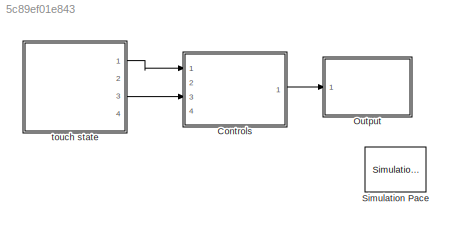
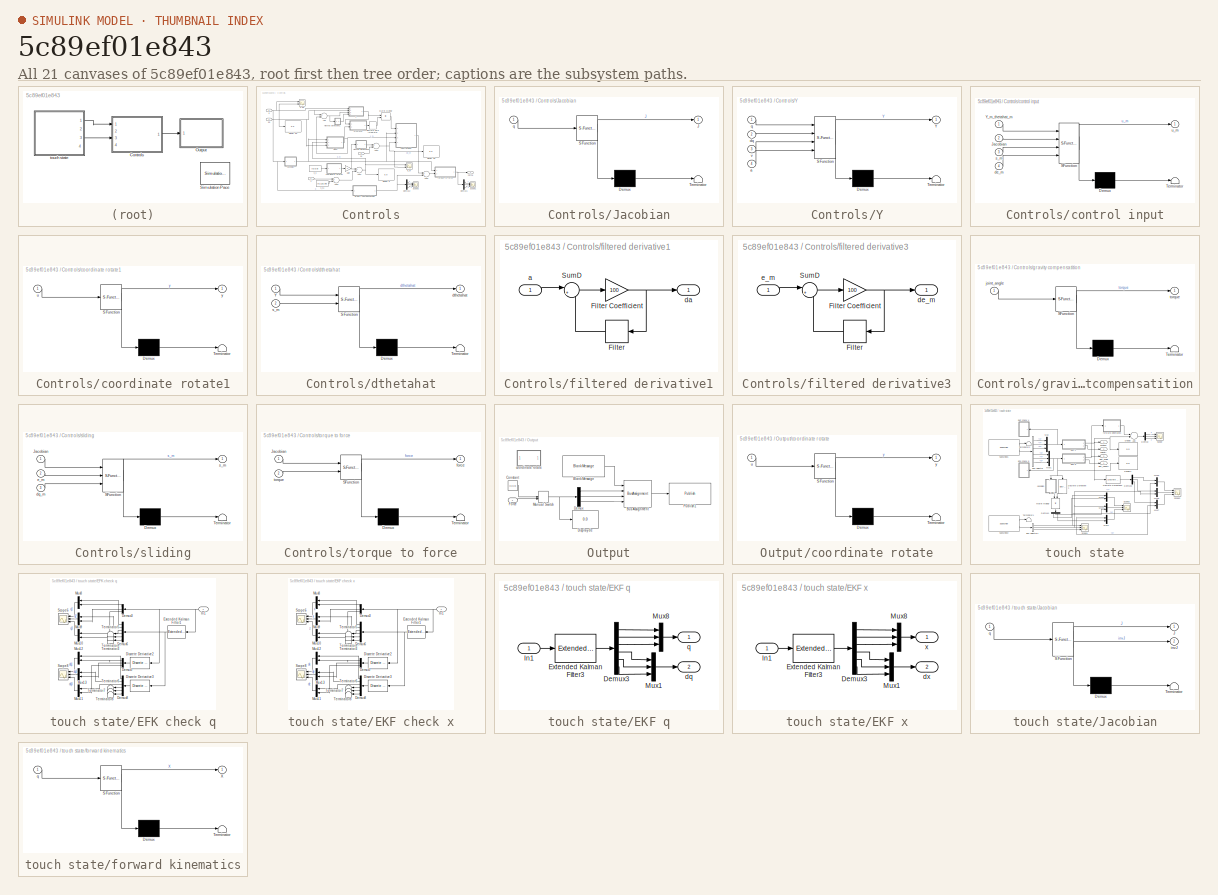
[diagram: thumbnail index - all 21 canvases of the model, root first then tree order]
MODEL slx_5c89ef01e843
KIND model
CONFIG AbsTol = auto
CONFIG EnableMultiTasking = on
CONFIG FixedStep = 0.01
CONFIG MaxStep = auto
CONFIG MinStep = auto
CONFIG RelTol = 1e-3
CONFIG SampleTimeConstraint = Unconstrained
CONFIG Solver = FixedStepDiscrete
CONFIG SolverName = FixedStepDiscrete
CONFIG StartTime = 0.0
CONFIG StopTime = Inf
WORKSPACE source: MAT-file member
WORKSPACE SL_ROS_VariableLengthArrays_MaxSizes: struct (value not decoded)
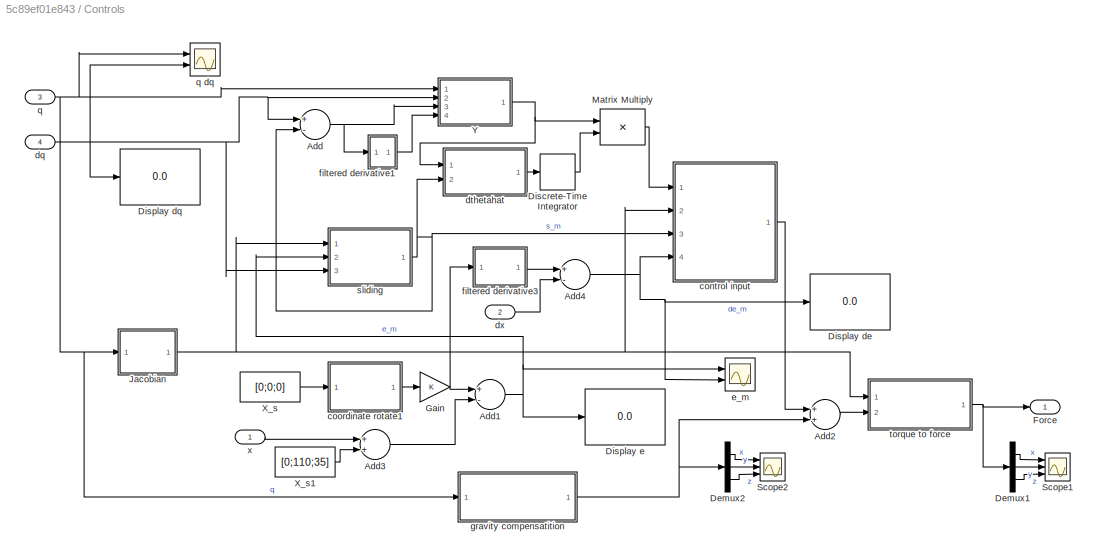
BLOCK [SubSystem] Controls
  Ports = [4, 1]
  RequestExecContextInheritance = off
BLOCK [Sum] Controls/Add
  InputSameDT = off
  Inputs = +-
  OutDataTypeStr = Inherit: Inherit via internal rule
  Ports = [2, 1]
  SaturateOnIntegerOverflow = off
BLOCK [Sum] Controls/Add1
  InputSameDT = off
  Inputs = +-
  OutDataTypeStr = Inherit: Inherit via internal rule
  Ports = [2, 1]
  SaturateOnIntegerOverflow = off
BLOCK [Sum] Controls/Add2
  InputSameDT = off
  OutDataTypeStr = Inherit: Inherit via internal rule
  Ports = [2, 1]
  SaturateOnIntegerOverflow = off
BLOCK [Sum] Controls/Add3
  InputSameDT = off
  OutDataTypeStr = Inherit: Inherit via internal rule
  Ports = [2, 1]
  SaturateOnIntegerOverflow = off
BLOCK [Sum] Controls/Add4
  InputSameDT = off
  Inputs = +-
  OutDataTypeStr = Inherit: Inherit via internal rule
  Ports = [2, 1]
  SaturateOnIntegerOverflow = off
BLOCK [Demux] Controls/Demux1
  DisplayOption = bar
  Outputs = 3
  Ports = [1, 3]
BLOCK [Demux] Controls/Demux2
  DisplayOption = bar
  Outputs = 3
  Ports = [1, 3]
BLOCK [DiscreteIntegrator] Controls/Discrete-Time Integrator
  ICPrevOutput = DiscIntNeverNeededParam
  ICPrevScaledInput = DiscIntNeverNeededParam
  InitialConditionSetting = Auto
  Ports = [1, 1]
  SampleTime = -1
BLOCK [Display] Controls/Display de
  Ports = [1]
BLOCK [Display] Controls/Display dq
  Ports = [1]
BLOCK [Display] Controls/Display e
  Ports = [1]
BLOCK [Outport] Controls/Force
  IconDisplay = Port number
BLOCK [Gain] Controls/Gain
  OutDataTypeStr = Inherit: Inherit via internal rule
  ParamDataTypeStr = Inherit: Inherit via internal rule
  SaturateOnIntegerOverflow = off
BLOCK [SubSystem] Controls/Jacobian
  ErrorFcn = Stateflow.Translate.translate
  PermitHierarchicalResolution = ExplicitOnly
  Ports = [1, 1]
  RequestExecContextInheritance = off
  SFBlockType = MATLAB Function
  TreatAsAtomicUnit = on
BLOCK [Demux] Controls/Jacobian/ Demux 
  Outputs = 1
  Ports = [1, 1]
BLOCK [S-Function] Controls/Jacobian/ SFunction 
  EnableBusSupport = on
  FunctionName = sf_sfun
  PortCounts = [1 2]
  Ports = [1, 2]
  SFcnIsStateOwnerBlock = off
  SFunctionDeploymentMode = off
  Tag = Stateflow S-Function distributed_swarm_controller 17
BLOCK [Terminator] Controls/Jacobian/ Terminator 
BLOCK [Outport] Controls/Jacobian/J
  IconDisplay = Port number
BLOCK [Inport] Controls/Jacobian/q
  IconDisplay = Port number
BLOCK [Product] Controls/Matrix Multiply
  InputSameDT = off
  Multiplication = Matrix(*)
  OutDataTypeStr = Inherit: Inherit via internal rule
  Ports = [2, 1]
  RndMeth = Floor
  SaturateOnIntegerOverflow = off
BLOCK [Scope] Controls/Scope1
  Floating = off
  NumInputPorts = 3
  Ports = [3]
  ScopeSpecificationString = Simulink.scopes.TimeScopeBlockCfg('CurrentConfiguration', extmgr.ConfigurationSet(extmgr.Configuration('Core','General UI',true),extmgr.Configuration('Core','Source UI',true),extmgr.Configuration('Sources','WiredSimulink',true,'DataLoggingVariableName','ScopeData4'),extmgr.Configuration('Visuals','Time Domain',true,'SerializedDisplays',{struct('MinYLimReal','-3.12609','MaxYLimReal','3.88345','YLab...<+2756ch>
BLOCK [Scope] Controls/Scope2
  Floating = off
  NumInputPorts = 3
  Ports = [3]
  ScopeSpecificationString = Simulink.scopes.TimeScopeBlockCfg('CurrentConfiguration', extmgr.ConfigurationSet(extmgr.Configuration('Core','General UI',true),extmgr.Configuration('Core','Source UI',true),extmgr.Configuration('Sources','WiredSimulink',true,'DataLoggingVariableName','ScopeData5'),extmgr.Configuration('Visuals','Time Domain',true,'SerializedDisplays',{struct('MinYLimReal','-1.00000','MaxYLimReal','1.00000','YLab...<+2758ch>
BLOCK [Constant] Controls/X_s
  Value = [0;0;0]
BLOCK [Constant] Controls/X_s1
  Value = [0;110;35]
BLOCK [SubSystem] Controls/Y
  ErrorFcn = Stateflow.Translate.translate
  PermitHierarchicalResolution = ExplicitOnly
  Ports = [4, 1]
  RequestExecContextInheritance = off
  SFBlockType = MATLAB Function
  TreatAsAtomicUnit = on
BLOCK [Demux] Controls/Y/ Demux 
  Outputs = 1
  Ports = [1, 1]
BLOCK [S-Function] Controls/Y/ SFunction 
  EnableBusSupport = on
  FunctionName = sf_sfun
  PortCounts = [4 2]
  Ports = [4, 2]
  SFcnIsStateOwnerBlock = off
  SFunctionDeploymentMode = off
  Tag = Stateflow S-Function distributed_swarm_controller 9
BLOCK [Terminator] Controls/Y/ Terminator 
BLOCK [Outport] Controls/Y/Y
  IconDisplay = Port number
BLOCK [Inport] Controls/Y/a
  IconDisplay = Port number
  Port = 4
BLOCK [Inport] Controls/Y/dq
  IconDisplay = Port number
  Port = 2
BLOCK [Inport] Controls/Y/q
  IconDisplay = Port number
BLOCK [Inport] Controls/Y/v
  IconDisplay = Port number
  Port = 3
BLOCK [SubSystem] Controls/control input
  ErrorFcn = Stateflow.Translate.translate
  PermitHierarchicalResolution = ExplicitOnly
  Ports = [4, 1]
  RequestExecContextInheritance = off
  SFBlockType = MATLAB Function
  TreatAsAtomicUnit = on
BLOCK [Demux] Controls/control input/ Demux 
  Outputs = 1
  Ports = [1, 1]
BLOCK [S-Function] Controls/control input/ SFunction 
  EnableBusSupport = on
  FunctionName = sf_sfun
  PortCounts = [4 2]
  Ports = [4, 2]
  SFcnIsStateOwnerBlock = off
  SFunctionDeploymentMode = off
  Tag = Stateflow S-Function distributed_swarm_controller 7
BLOCK [Terminator] Controls/control input/ Terminator 
BLOCK [Inport] Controls/control input/Jacobian
  IconDisplay = Port number
  Port = 2
BLOCK [Inport] Controls/control input/Y_m_thetahat_m
  IconDisplay = Port number
BLOCK [Inport] Controls/control input/de_m
  IconDisplay = Port number
  Port = 4
BLOCK [Inport] Controls/control input/s_m
  IconDisplay = Port number
  Port = 3
BLOCK [Outport] Controls/control input/u_m
  IconDisplay = Port number
BLOCK [SubSystem] Controls/coordinate rotate1
  ErrorFcn = Stateflow.Translate.translate
  PermitHierarchicalResolution = ExplicitOnly
  Ports = [1, 1]
  RequestExecContextInheritance = off
  SFBlockType = MATLAB Function
  TreatAsAtomicUnit = on
BLOCK [Demux] Controls/coordinate rotate1/ Demux 
  Outputs = 1
  Ports = [1, 1]
BLOCK [S-Function] Controls/coordinate rotate1/ SFunction 
  EnableBusSupport = on
  FunctionName = sf_sfun
  PortCounts = [1 2]
  Ports = [1, 2]
  SFcnIsStateOwnerBlock = off
  SFunctionDeploymentMode = off
  Tag = Stateflow S-Function distributed_swarm_controller 11
BLOCK [Terminator] Controls/coordinate rotate1/ Terminator 
BLOCK [Inport] Controls/coordinate rotate1/u
  IconDisplay = Port number
BLOCK [Outport] Controls/coordinate rotate1/y
  IconDisplay = Port number
BLOCK [Inport] Controls/dq
  IconDisplay = Port number
  Port = 4
BLOCK [SubSystem] Controls/dthetahat
  ErrorFcn = Stateflow.Translate.translate
  PermitHierarchicalResolution = ExplicitOnly
  Ports = [2, 1]
  RequestExecContextInheritance = off
  SFBlockType = MATLAB Function
  TreatAsAtomicUnit = on
BLOCK [Demux] Controls/dthetahat/ Demux 
  Outputs = 1
  Ports = [1, 1]
BLOCK [S-Function] Controls/dthetahat/ SFunction 
  EnableBusSupport = on
  FunctionName = sf_sfun
  PortCounts = [2 2]
  Ports = [2, 2]
  SFcnIsStateOwnerBlock = off
  SFunctionDeploymentMode = off
  Tag = Stateflow S-Function distributed_swarm_controller 10
BLOCK [Terminator] Controls/dthetahat/ Terminator 
BLOCK [Inport] Controls/dthetahat/Y
  IconDisplay = Port number
BLOCK [Outport] Controls/dthetahat/dthetahat
  IconDisplay = Port number
BLOCK [Inport] Controls/dthetahat/s_m
  IconDisplay = Port number
  Port = 2
BLOCK [Inport] Controls/dx
  IconDisplay = Port number
  Port = 2
BLOCK [Scope] Controls/e_m
  Floating = off
  NumInputPorts = 2
  Ports = [2]
  ScopeSpecificationString = Simulink.scopes.TimeScopeBlockCfg('CurrentConfiguration', extmgr.ConfigurationSet(extmgr.Configuration('Core','General UI',true),extmgr.Configuration('Core','Source UI',true),extmgr.Configuration('Sources','WiredSimulink',true,'DataLoggingVariableName','ScopeData2'),extmgr.Configuration('Visuals','Time Domain',true,'SerializedDisplays',{struct('MinYLimReal','-112.44065','MaxYLimReal','134.71979','...<+2151ch>
BLOCK [SubSystem] Controls/filtered derivative1
  Ports = [1, 1]
  RequestExecContextInheritance = off
BLOCK [DiscreteIntegrator] Controls/filtered derivative1/Filter
  DisableCoverage = on
  ICPrevOutput = DiscIntNeverNeededParam
  ICPrevScaledInput = DiscIntNeverNeededParam
  InitialConditionSetting = Auto
  Ports = [1, 1]
  SampleTime = -1
BLOCK [Gain] Controls/filtered derivative1/Filter Coefficient
  Gain = 100
  OutDataTypeStr = Inherit: Inherit via internal rule
  ParamDataTypeStr = Inherit: Inherit via internal rule
  SaturateOnIntegerOverflow = off
BLOCK [Sum] Controls/filtered derivative1/SumD
  DisableCoverage = on
  IconShape = round
  InputSameDT = off
  Inputs = |+-
  OutDataTypeStr = Inherit: Inherit via internal rule
  Ports = [2, 1]
  SaturateOnIntegerOverflow = off
BLOCK [Inport] Controls/filtered derivative1/a
  IconDisplay = Port number
BLOCK [Outport] Controls/filtered derivative1/da
  IconDisplay = Port number
BLOCK [SubSystem] Controls/filtered derivative3
  Ports = [1, 1]
  RequestExecContextInheritance = off
BLOCK [DiscreteIntegrator] Controls/filtered derivative3/Filter
  DisableCoverage = on
  ICPrevOutput = DiscIntNeverNeededParam
  ICPrevScaledInput = DiscIntNeverNeededParam
  InitialConditionSetting = Auto
  Ports = [1, 1]
  SampleTime = -1
BLOCK [Gain] Controls/filtered derivative3/Filter Coefficient
  Gain = 100
  OutDataTypeStr = Inherit: Inherit via internal rule
  ParamDataTypeStr = Inherit: Inherit via internal rule
  SaturateOnIntegerOverflow = off
BLOCK [Sum] Controls/filtered derivative3/SumD
  DisableCoverage = on
  IconShape = round
  InputSameDT = off
  Inputs = |+-
  OutDataTypeStr = Inherit: Inherit via internal rule
  Ports = [2, 1]
  SaturateOnIntegerOverflow = off
BLOCK [Outport] Controls/filtered derivative3/de_m
  IconDisplay = Port number
BLOCK [Inport] Controls/filtered derivative3/e_m
  IconDisplay = Port number
BLOCK [SubSystem] Controls/gravity compensatition
  ErrorFcn = Stateflow.Translate.translate
  PermitHierarchicalResolution = ExplicitOnly
  Ports = [1, 1]
  RequestExecContextInheritance = off
  SFBlockType = MATLAB Function
  TreatAsAtomicUnit = on
BLOCK [Demux] Controls/gravity compensatition/ Demux 
  Outputs = 1
  Ports = [1, 1]
BLOCK [S-Function] Controls/gravity compensatition/ SFunction 
  EnableBusSupport = on
  FunctionName = sf_sfun
  PortCounts = [1 2]
  Ports = [1, 2]
  SFcnIsStateOwnerBlock = off
  SFunctionDeploymentMode = off
  Tag = Stateflow S-Function distributed_swarm_controller 2
BLOCK [Terminator] Controls/gravity compensatition/ Terminator 
BLOCK [Inport] Controls/gravity compensatition/joint_angle
  IconDisplay = Port number
BLOCK [Outport] Controls/gravity compensatition/torque
  IconDisplay = Port number
BLOCK [Inport] Controls/q
  IconDisplay = Port number
  Port = 3
BLOCK [Scope] Controls/q dq
  Floating = off
  NumInputPorts = 2
  Ports = [2]
  ScopeSpecificationString = Simulink.scopes.TimeScopeBlockCfg('CurrentConfiguration', extmgr.ConfigurationSet(extmgr.Configuration('Core','General UI',true),extmgr.Configuration('Core','Source UI',true),extmgr.Configuration('Sources','WiredSimulink',true,'DataLoggingVariableName','ScopeData1'),extmgr.Configuration('Visuals','Time Domain',true,'SerializedDisplays',{struct('MinYLimReal','-1.07354','MaxYLimReal','1.23818','YLab...<+2120ch>
BLOCK [SubSystem] Controls/sliding
  ErrorFcn = Stateflow.Translate.translate
  PermitHierarchicalResolution = ExplicitOnly
  Ports = [3, 1]
  RequestExecContextInheritance = off
  SFBlockType = MATLAB Function
  TreatAsAtomicUnit = on
BLOCK [Demux] Controls/sliding/ Demux 
  Outputs = 1
  Ports = [1, 1]
BLOCK [S-Function] Controls/sliding/ SFunction 
  EnableBusSupport = on
  FunctionName = sf_sfun
  PortCounts = [3 2]
  Ports = [3, 2]
  SFcnIsStateOwnerBlock = off
  SFunctionDeploymentMode = off
  Tag = Stateflow S-Function distributed_swarm_controller 8
BLOCK [Terminator] Controls/sliding/ Terminator 
BLOCK [Inport] Controls/sliding/Jacobian
  IconDisplay = Port number
BLOCK [Inport] Controls/sliding/dq_m
  IconDisplay = Port number
  Port = 3
BLOCK [Inport] Controls/sliding/e_m
  IconDisplay = Port number
  Port = 2
BLOCK [Outport] Controls/sliding/s_m
  IconDisplay = Port number
BLOCK [SubSystem] Controls/torque to force
  ErrorFcn = Stateflow.Translate.translate
  PermitHierarchicalResolution = ExplicitOnly
  Ports = [2, 1]
  RequestExecContextInheritance = off
  SFBlockType = MATLAB Function
  TreatAsAtomicUnit = on
BLOCK [Demux] Controls/torque to force/ Demux 
  Outputs = 1
  Ports = [1, 1]
BLOCK [S-Function] Controls/torque to force/ SFunction 
  EnableBusSupport = on
  FunctionName = sf_sfun
  PortCounts = [2 2]
  Ports = [2, 2]
  SFcnIsStateOwnerBlock = off
  SFunctionDeploymentMode = off
  Tag = Stateflow S-Function distributed_swarm_controller 1
BLOCK [Terminator] Controls/torque to force/ Terminator 
BLOCK [Inport] Controls/torque to force/Jacobian
  IconDisplay = Port number
BLOCK [Outport] Controls/torque to force/force
  IconDisplay = Port number
BLOCK [Inport] Controls/torque to force/torque
  IconDisplay = Port number
  Port = 2
BLOCK [Inport] Controls/x
  IconDisplay = Port number
BLOCK [SubSystem] Output
  Ports = [1]
  RequestExecContextInheritance = off
BLOCK [Reference] Output/Blank Message  REF=robotlib/Blank Message
  Ports = [0, 1]
  SourceBlock = robotlib/Blank Message
  SourceLibraryInfo = This block requires Robotics System Toolbox
  SourceProductBaseCode = RO
  SourceProductName = Robotics System Toolbox
  SourceType = ROS Blank Message
BLOCK [BusAssignment] Output/Bus Assignment
  AssignedSignals = Vector_.X,Vector_.Y,Vector_.Z
  DialogController = Simulink.DDGSource_BusAssignment
  Ports = [4, 1]
BLOCK [Constant] Output/Constant
  Value = [0;0;0]
BLOCK [Demux] Output/Demux
  DisplayOption = bar
  Outputs = 3
  Ports = [1, 3]
BLOCK [Display] Output/Display de
  Ports = [1]
BLOCK [Inport] Output/Force
  IconDisplay = Port number
BLOCK [ManualSwitch] Output/Manual Switch
BLOCK [Reference] Output/Publish1  REF=robotlib/Publish
  Ports = [1]
  SourceBlock = robotlib/Publish
  SourceLibraryInfo = This block requires Robotics System Toolbox
  SourceProductBaseCode = RO
  SourceProductName = Robotics System Toolbox
  SourceType = ROS Publish
BLOCK [SubSystem] Output/coordinate rotate
  Commented = through
  ErrorFcn = Stateflow.Translate.translate
  PermitHierarchicalResolution = ExplicitOnly
  Ports = [1, 1]
  RequestExecContextInheritance = off
  SFBlockType = MATLAB Function
  TreatAsAtomicUnit = on
BLOCK [Demux] Output/coordinate rotate/ Demux 
  Outputs = 1
  Ports = [1, 1]
BLOCK [S-Function] Output/coordinate rotate/ SFunction 
  EnableBusSupport = on
  FunctionName = sf_sfun
  PortCounts = [1 2]
  Ports = [1, 2]
  SFcnIsStateOwnerBlock = off
  SFunctionDeploymentMode = off
  Tag = Stateflow S-Function distributed_swarm_controller 5
BLOCK [Terminator] Output/coordinate rotate/ Terminator 
BLOCK [Inport] Output/coordinate rotate/u
  IconDisplay = Port number
BLOCK [Outport] Output/coordinate rotate/y
  IconDisplay = Port number
BLOCK [Reference] Simulation Pace  REF=aerolibanimutils/Simulation Pace
  AttributesFormatString = %<SleepMode>\n%<SimulationPace> sec/sec
  Ports = []
  SourceBlock = aerolibanimutils/Simulation Pace
  SourceProductBaseCode = AE
  SourceProductName = Aerospace Blockset
  SourceType = Simulation Pace
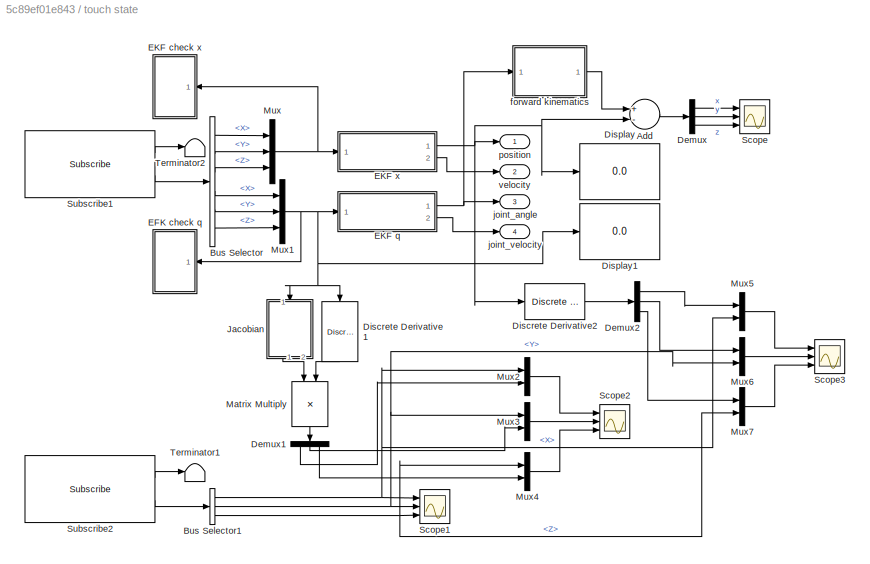
BLOCK [SubSystem] touch state
  Ports = [0, 4]
  RequestExecContextInheritance = off
BLOCK [Sum] touch state/Add
  InputSameDT = off
  Inputs = +-
  OutDataTypeStr = Inherit: Inherit via internal rule
  Ports = [2, 1]
  SaturateOnIntegerOverflow = off
BLOCK [BusSelector] touch state/Bus Selector
  DialogController = Simulink.DDGSource_BusSelector
  OutputAsBus = off
  OutputSignals = Twist.Linear.X,Twist.Linear.Y,Twist.Linear.Z,Twist.Angular.X,Twist.Angular.Y,Twist.Angular.Z
  Ports = [1, 6]
BLOCK [BusSelector] touch state/Bus Selector1
  DialogController = Simulink.DDGSource_BusSelector
  OutputAsBus = off
  OutputSignals = Vector_.X,Vector_.Y,Vector_.Z
  Ports = [1, 3]
BLOCK [Demux] touch state/Demux
  DisplayOption = bar
  Outputs = 3
  Ports = [1, 3]
BLOCK [Demux] touch state/Demux1
  DisplayOption = bar
  Outputs = 3
  Ports = [1, 3]
BLOCK [Demux] touch state/Demux2
  DisplayOption = bar
  Outputs = 3
  Ports = [1, 3]
BLOCK [Reference] touch state/Discrete Derivative1  REF=simulink/Discrete/Discrete Derivative
  Ports = [1, 1]
  SourceBlock = simulink/Discrete/Discrete Derivative
  SourceProductBaseCode = SL
  SourceProductName = Simulink
  SourceType = Discrete Derivative
BLOCK [Reference] touch state/Discrete Derivative2  REF=simulink/Discrete/Discrete Derivative
  Ports = [1, 1]
  SourceBlock = simulink/Discrete/Discrete Derivative
  SourceProductBaseCode = SL
  SourceProductName = Simulink
  SourceType = Discrete Derivative
BLOCK [Display] touch state/Display
  Ports = [1]
BLOCK [Display] touch state/Display1
  Ports = [1]
BLOCK [SubSystem] touch state/EFK check q
  Ports = [1]
  RequestExecContextInheritance = off
BLOCK [Demux] touch state/EFK check q/Demux3
  DisplayOption = bar
  Outputs = 3
  Ports = [1, 3]
BLOCK [Demux] touch state/EFK check q/Demux6
  DisplayOption = bar
  Outputs = 6
  Ports = [1, 6]
BLOCK [Demux] touch state/EFK check q/Demux7
  DisplayOption = bar
  Outputs = 3
  Ports = [1, 3]
BLOCK [Demux] touch state/EFK check q/Demux8
  DisplayOption = bar
  Outputs = 6
  Ports = [1, 6]
BLOCK [Reference] touch state/EFK check q/Discrete Derivative2  REF=simulink/Discrete/Discrete Derivative
  Ports = [1, 1]
  SourceBlock = simulink/Discrete/Discrete Derivative
  SourceProductBaseCode = SL
  SourceProductName = Simulink
  SourceType = Discrete Derivative
BLOCK [Reference] touch state/EFK check q/Discrete Derivative3  REF=simulink/Discrete/Discrete Derivative
  Ports = [1, 1]
  SourceBlock = simulink/Discrete/Discrete Derivative
  SourceProductBaseCode = SL
  SourceProductName = Simulink
  SourceType = Discrete Derivative
BLOCK [Reference] touch state/EFK check q/Extended Kalman Filter1  REF=sharedTrackingLibrary/Extended Kalman Filter
  Ports = [1, 1]
  SourceBlock = sharedTrackingLibrary/Extended Kalman Filter
  SourceProductBaseCode = CT
  SourceProductName = Control System Toolbox
  SourceType = Extended Kalman Filter
BLOCK [Inport] touch state/EFK check q/In1
  IconDisplay = Port number
BLOCK [Mux] touch state/EFK check q/Mux10
  DisplayOption = bar
  Inputs = 2
  Ports = [2, 1]
BLOCK [Mux] touch state/EFK check q/Mux11
  DisplayOption = bar
  Inputs = 2
  Ports = [2, 1]
BLOCK [Mux] touch state/EFK check q/Mux12
  DisplayOption = bar
  Inputs = 2
  Ports = [2, 1]
BLOCK [Mux] touch state/EFK check q/Mux13
  DisplayOption = bar
  Inputs = 2
  Ports = [2, 1]
BLOCK [Mux] touch state/EFK check q/Mux8
  DisplayOption = bar
  Inputs = 2
  Ports = [2, 1]
BLOCK [Mux] touch state/EFK check q/Mux9
  DisplayOption = bar
  Inputs = 2
  Ports = [2, 1]
BLOCK [Scope] touch state/EFK check q/Scope6
  Floating = off
  NumInputPorts = 3
  Ports = [3]
  ScopeSpecificationString = Simulink.scopes.TimeScopeBlockCfg('CurrentConfiguration', extmgr.ConfigurationSet(extmgr.Configuration('Core','General UI',true),extmgr.Configuration('Core','Source UI',true),extmgr.Configuration('Sources','WiredSimulink',true,'DataLoggingVariableName','ScopeData4'),extmgr.Configuration('Visuals','Time Domain',true,'SerializedDisplays',{struct('MinYLimReal','-1.15378','MaxYLimReal','0.86843','YLab...<+2763ch>
BLOCK [Scope] touch state/EFK check q/Scope8
  Floating = off
  NumInputPorts = 3
  Ports = [3]
  ScopeSpecificationString = Simulink.scopes.TimeScopeBlockCfg('CurrentConfiguration', extmgr.ConfigurationSet(extmgr.Configuration('Core','General UI',true),extmgr.Configuration('Core','Source UI',true),extmgr.Configuration('Sources','WiredSimulink',true,'DataLoggingVariableName','ScopeData6'),extmgr.Configuration('Visuals','Time Domain',true,'SerializedDisplays',{struct('MinYLimReal','-10.07438','MaxYLimReal','17.47595','YL...<+2774ch>
BLOCK [Terminator] touch state/EFK check q/Terminator3
BLOCK [Terminator] touch state/EFK check q/Terminator4
BLOCK [Terminator] touch state/EFK check q/Terminator5
BLOCK [Terminator] touch state/EFK check q/Terminator6
BLOCK [Terminator] touch state/EFK check q/Terminator7
BLOCK [Terminator] touch state/EFK check q/Terminator8
BLOCK [SubSystem] touch state/EKF check x
  Ports = [1]
  RequestExecContextInheritance = off
BLOCK [Demux] touch state/EKF check x/Demux3
  DisplayOption = bar
  Outputs = 3
  Ports = [1, 3]
BLOCK [Demux] touch state/EKF check x/Demux6
  DisplayOption = bar
  Outputs = 6
  Ports = [1, 6]
BLOCK [Demux] touch state/EKF check x/Demux7
  DisplayOption = bar
  Outputs = 3
  Ports = [1, 3]
BLOCK [Demux] touch state/EKF check x/Demux8
  DisplayOption = bar
  Outputs = 6
  Ports = [1, 6]
BLOCK [Reference] touch state/EKF check x/Discrete Derivative2  REF=simulink/Discrete/Discrete Derivative
  Ports = [1, 1]
  SourceBlock = simulink/Discrete/Discrete Derivative
  SourceProductBaseCode = SL
  SourceProductName = Simulink
  SourceType = Discrete Derivative
BLOCK [Reference] touch state/EKF check x/Discrete Derivative3  REF=simulink/Discrete/Discrete Derivative
  Ports = [1, 1]
  SourceBlock = simulink/Discrete/Discrete Derivative
  SourceProductBaseCode = SL
  SourceProductName = Simulink
  SourceType = Discrete Derivative
BLOCK [Reference] touch state/EKF check x/Extended Kalman Filter1  REF=sharedTrackingLibrary/Extended Kalman Filter
  Ports = [1, 1]
  SourceBlock = sharedTrackingLibrary/Extended Kalman Filter
  SourceProductBaseCode = CT
  SourceProductName = Control System Toolbox
  SourceType = Extended Kalman Filter
BLOCK [Inport] touch state/EKF check x/In1
  IconDisplay = Port number
BLOCK [Mux] touch state/EKF check x/Mux10
  DisplayOption = bar
  Inputs = 2
  Ports = [2, 1]
BLOCK [Mux] touch state/EKF check x/Mux11
  DisplayOption = bar
  Inputs = 2
  Ports = [2, 1]
BLOCK [Mux] touch state/EKF check x/Mux12
  DisplayOption = bar
  Inputs = 2
  Ports = [2, 1]
BLOCK [Mux] touch state/EKF check x/Mux13
  DisplayOption = bar
  Inputs = 2
  Ports = [2, 1]
BLOCK [Mux] touch state/EKF check x/Mux8
  DisplayOption = bar
  Inputs = 2
  Ports = [2, 1]
BLOCK [Mux] touch state/EKF check x/Mux9
  DisplayOption = bar
  Inputs = 2
  Ports = [2, 1]
BLOCK [Scope] touch state/EKF check x/Scope6
  Floating = off
  NumInputPorts = 3
  Ports = [3]
  ScopeSpecificationString = Simulink.scopes.TimeScopeBlockCfg('CurrentConfiguration', extmgr.ConfigurationSet(extmgr.Configuration('Core','General UI',true),extmgr.Configuration('Core','Source UI',true),extmgr.Configuration('Sources','WiredSimulink',true,'DataLoggingVariableName','ScopeData4'),extmgr.Configuration('Visuals','Time Domain',true,'SerializedDisplays',{struct('MinYLimReal','-141.74114','MaxYLimReal','130.83105','...<+2769ch>
BLOCK [Scope] touch state/EKF check x/Scope8
  Floating = off
  NumInputPorts = 3
  Ports = [3]
  ScopeSpecificationString = Simulink.scopes.TimeScopeBlockCfg('CurrentConfiguration', extmgr.ConfigurationSet(extmgr.Configuration('Core','General UI',true),extmgr.Configuration('Core','Source UI',true),extmgr.Configuration('Sources','WiredSimulink',true,'DataLoggingVariableName','ScopeData6'),extmgr.Configuration('Visuals','Time Domain',true,'SerializedDisplays',{struct('MinYLimReal','-5139.14709','MaxYLimReal','6081.94227'...<+2784ch>
BLOCK [Terminator] touch state/EKF check x/Terminator3
BLOCK [Terminator] touch state/EKF check x/Terminator4
BLOCK [Terminator] touch state/EKF check x/Terminator5
BLOCK [Terminator] touch state/EKF check x/Terminator6
BLOCK [Terminator] touch state/EKF check x/Terminator7
BLOCK [Terminator] touch state/EKF check x/Terminator8
BLOCK [SubSystem] touch state/EKF q
  Ports = [1, 2]
  RequestExecContextInheritance = off
BLOCK [Demux] touch state/EKF q/Demux3
  DisplayOption = bar
  Outputs = 6
  Ports = [1, 6]
BLOCK [Reference] touch state/EKF q/Extended Kalman Filter3  REF=sharedTrackingLibrary/Extended Kalman Filter
  Ports = [1, 1]
  SourceBlock = sharedTrackingLibrary/Extended Kalman Filter
  SourceProductBaseCode = CT
  SourceProductName = Control System Toolbox
  SourceType = Extended Kalman Filter
BLOCK [Inport] touch state/EKF q/In1
  IconDisplay = Port number
BLOCK [Mux] touch state/EKF q/Mux1
  DisplayOption = bar
  Inputs = 3
  Ports = [3, 1]
BLOCK [Mux] touch state/EKF q/Mux8
  DisplayOption = bar
  Inputs = 3
  Ports = [3, 1]
BLOCK [Outport] touch state/EKF q/dq
  IconDisplay = Port number
  Port = 2
BLOCK [Outport] touch state/EKF q/q
  IconDisplay = Port number
BLOCK [SubSystem] touch state/EKF x
  Ports = [1, 2]
  RequestExecContextInheritance = off
BLOCK [Demux] touch state/EKF x/Demux3
  DisplayOption = bar
  Outputs = 6
  Ports = [1, 6]
BLOCK [Reference] touch state/EKF x/Extended Kalman Filter3  REF=sharedTrackingLibrary/Extended Kalman Filter
  Ports = [1, 1]
  SourceBlock = sharedTrackingLibrary/Extended Kalman Filter
  SourceProductBaseCode = CT
  SourceProductName = Control System Toolbox
  SourceType = Extended Kalman Filter
BLOCK [Inport] touch state/EKF x/In1
  IconDisplay = Port number
BLOCK [Mux] touch state/EKF x/Mux1
  DisplayOption = bar
  Inputs = 3
  Ports = [3, 1]
BLOCK [Mux] touch state/EKF x/Mux8
  DisplayOption = bar
  Inputs = 3
  Ports = [3, 1]
BLOCK [Outport] touch state/EKF x/dx
  IconDisplay = Port number
  Port = 2
BLOCK [Outport] touch state/EKF x/x
  IconDisplay = Port number
BLOCK [SubSystem] touch state/Jacobian
  ErrorFcn = Stateflow.Translate.translate
  PermitHierarchicalResolution = ExplicitOnly
  Ports = [1, 2]
  RequestExecContextInheritance = off
  SFBlockType = MATLAB Function
  TreatAsAtomicUnit = on
BLOCK [Demux] touch state/Jacobian/ Demux 
  Outputs = 1
  Ports = [1, 1]
BLOCK [S-Function] touch state/Jacobian/ SFunction 
  EnableBusSupport = on
  FunctionName = sf_sfun
  PortCounts = [1 3]
  Ports = [1, 3]
  SFcnIsStateOwnerBlock = off
  SFunctionDeploymentMode = off
  Tag = Stateflow S-Function distributed_swarm_controller 6
BLOCK [Terminator] touch state/Jacobian/ Terminator 
BLOCK [Outport] touch state/Jacobian/J
  IconDisplay = Port number
BLOCK [Outport] touch state/Jacobian/invJ
  IconDisplay = Port number
  Port = 2
BLOCK [Inport] touch state/Jacobian/q
  IconDisplay = Port number
BLOCK [Product] touch state/Matrix Multiply
  InputSameDT = off
  Multiplication = Matrix(*)
  OutDataTypeStr = Inherit: Inherit via internal rule
  Ports = [2, 1]
  RndMeth = Floor
  SaturateOnIntegerOverflow = off
BLOCK [Mux] touch state/Mux
  DisplayOption = bar
  Inputs = 3
  Ports = [3, 1]
BLOCK [Mux] touch state/Mux1
  DisplayOption = bar
  Inputs = 3
  Ports = [3, 1]
BLOCK [Mux] touch state/Mux2
  DisplayOption = bar
  Inputs = 2
  Ports = [2, 1]
BLOCK [Mux] touch state/Mux3
  DisplayOption = bar
  Inputs = 2
  Ports = [2, 1]
BLOCK [Mux] touch state/Mux4
  DisplayOption = bar
  Inputs = 2
  Ports = [2, 1]
BLOCK [Mux] touch state/Mux5
  DisplayOption = bar
  Inputs = 2
  Ports = [2, 1]
BLOCK [Mux] touch state/Mux6
  DisplayOption = bar
  Inputs = 2
  Ports = [2, 1]
BLOCK [Mux] touch state/Mux7
  DisplayOption = bar
  Inputs = 2
  Ports = [2, 1]
BLOCK [Scope] touch state/Scope
  Floating = off
  NumInputPorts = 3
  Ports = [3]
  ScopeSpecificationString = Simulink.scopes.TimeScopeBlockCfg('CurrentConfiguration', extmgr.ConfigurationSet(extmgr.Configuration('Core','General UI',true),extmgr.Configuration('Core','Source UI',true),extmgr.Configuration('Sources','WiredSimulink',true),extmgr.Configuration('Visuals','Time Domain',true,'SerializedDisplays',{struct('MinYLimReal','-0.0115985','MaxYLimReal','-0.0115922','YLabelReal','','MinYLimMag','0.0000000...<+2707ch>
BLOCK [Scope] touch state/Scope1
  Floating = off
  NumInputPorts = 3
  Ports = [3]
  ScopeSpecificationString = Simulink.scopes.TimeScopeBlockCfg('CurrentConfiguration', extmgr.ConfigurationSet(extmgr.Configuration('Core','General UI',true),extmgr.Configuration('Core','Source UI',true),extmgr.Configuration('Sources','WiredSimulink',true,'DataLoggingVariableName','ScopeData1'),extmgr.Configuration('Visuals','Time Domain',true,'SerializedDisplays',{struct('MinYLimReal','-0.70411','MaxYLimReal','0.59555','YLab...<+2734ch>
BLOCK [Scope] touch state/Scope2
  Floating = off
  NumInputPorts = 3
  Ports = [3]
  ScopeSpecificationString = Simulink.scopes.TimeScopeBlockCfg('CurrentConfiguration', extmgr.ConfigurationSet(extmgr.Configuration('Core','General UI',true),extmgr.Configuration('Core','Source UI',true),extmgr.Configuration('Sources','WiredSimulink',true,'DataLoggingVariableName','ScopeData1'),extmgr.Configuration('Visuals','Time Domain',true,'SerializedDisplays',{struct('MinYLimReal','-785.19996','MaxYLimReal','2100.42535',...<+2791ch>
BLOCK [Scope] touch state/Scope3
  Floating = off
  NumInputPorts = 3
  Ports = [3]
  ScopeSpecificationString = Simulink.scopes.TimeScopeBlockCfg('CurrentConfiguration', extmgr.ConfigurationSet(extmgr.Configuration('Core','General UI',true),extmgr.Configuration('Core','Source UI',true),extmgr.Configuration('Sources','WiredSimulink',true,'DataLoggingVariableName','ScopeData2'),extmgr.Configuration('Visuals','Time Domain',true,'SerializedDisplays',{struct('MinYLimReal','-988.59987','MaxYLimReal','731.06333','...<+2790ch>
BLOCK [Reference] touch state/Subscribe1  REF=robotlib/Subscribe
  Ports = [0, 2]
  SourceBlock = robotlib/Subscribe
  SourceLibraryInfo = This block requires Robotics System Toolbox
  SourceProductBaseCode = RO
  SourceProductName = Robotics System Toolbox
  SourceType = ROS Subscribe
BLOCK [Reference] touch state/Subscribe2  REF=robotlib/Subscribe
  Ports = [0, 2]
  SourceBlock = robotlib/Subscribe
  SourceLibraryInfo = This block requires Robotics System Toolbox
  SourceProductBaseCode = RO
  SourceProductName = Robotics System Toolbox
  SourceType = ROS Subscribe
BLOCK [Terminator] touch state/Terminator1
BLOCK [Terminator] touch state/Terminator2
BLOCK [SubSystem] touch state/forward kinematics
  ErrorFcn = Stateflow.Translate.translate
  PermitHierarchicalResolution = ExplicitOnly
  Ports = [1, 1]
  RequestExecContextInheritance = off
  SFBlockType = MATLAB Function
  TreatAsAtomicUnit = on
BLOCK [Demux] touch state/forward kinematics/ Demux 
  Outputs = 1
  Ports = [1, 1]
BLOCK [S-Function] touch state/forward kinematics/ SFunction 
  EnableBusSupport = on
  FunctionName = sf_sfun
  PortCounts = [1 2]
  Ports = [1, 2]
  SFcnIsStateOwnerBlock = off
  SFunctionDeploymentMode = off
  Tag = Stateflow S-Function distributed_swarm_controller 3
BLOCK [Terminator] touch state/forward kinematics/ Terminator 
BLOCK [Outport] touch state/forward kinematics/X
  IconDisplay = Port number
BLOCK [Inport] touch state/forward kinematics/q
  IconDisplay = Port number
BLOCK [Outport] touch state/joint_angle
  IconDisplay = Port number
  Port = 3
BLOCK [Outport] touch state/joint_velocity
  IconDisplay = Port number
  Port = 4
BLOCK [Outport] touch state/position
  IconDisplay = Port number
BLOCK [Outport] touch state/velocity
  IconDisplay = Port number
  Port = 2
NET Controls/Add1:1 -> Controls/Display e:1, Controls/e_m:1, Controls/sliding:2
LINE Controls/Add2:1 -> Controls/torque to force:2
LINE Controls/Add3:1 -> Controls/Add1:2
NET Controls/Add4:1 -> Controls/Display de:1, Controls/control input:4, Controls/e_m:2
NET Controls/Add:1 -> Controls/Y:3, Controls/filtered derivative1:1
LINE Controls/Demux1:1 -> Controls/Scope1:1
LINE Controls/Demux1:2 -> Controls/Scope1:2
LINE Controls/Demux1:3 -> Controls/Scope1:3
LINE Controls/Demux2:1 -> Controls/Scope2:1
LINE Controls/Demux2:2 -> Controls/Scope2:2
LINE Controls/Demux2:3 -> Controls/Scope2:3
LINE Controls/Discrete-Time Integrator:1 -> Controls/Matrix Multiply:2
NET Controls/Gain:1 -> Controls/Add1:1, Controls/filtered derivative3:1
NET Controls/Jacobian:1 -> Controls/control input:2, Controls/sliding:1, Controls/torque to force:1
LINE Controls/Matrix Multiply:1 -> Controls/control input:1
LINE Controls/X_s1:1 -> Controls/Add3:2
LINE Controls/X_s:1 -> Controls/coordinate rotate1:1
NET Controls/Y:1 -> Controls/Matrix Multiply:1, Controls/dthetahat:1
LINE Controls/control input:1 -> Controls/Add2:1
LINE Controls/coordinate rotate1:1 -> Controls/Gain:1
NET Controls/dq:1 -> Controls/Add:1, Controls/Display dq:1, Controls/Y:2, Controls/q dq:2, Controls/sliding:3
LINE Controls/dthetahat:1 -> Controls/Discrete-Time Integrator:1
LINE Controls/dx:1 -> Controls/Add4:2
NET Controls/filtered derivative1/Filter Coefficient:1 -> Controls/filtered derivative1/Filter:1, Controls/filtered derivative1/da:1
LINE Controls/filtered derivative1/Filter:1 -> Controls/filtered derivative1/SumD:2
LINE Controls/filtered derivative1/SumD:1 -> Controls/filtered derivative1/Filter Coefficient:1
LINE Controls/filtered derivative1/a:1 -> Controls/filtered derivative1/SumD:1
LINE Controls/filtered derivative1:1 -> Controls/Y:4
NET Controls/filtered derivative3/Filter Coefficient:1 -> Controls/filtered derivative3/Filter:1, Controls/filtered derivative3/de_m:1
LINE Controls/filtered derivative3/Filter:1 -> Controls/filtered derivative3/SumD:2
LINE Controls/filtered derivative3/SumD:1 -> Controls/filtered derivative3/Filter Coefficient:1
LINE Controls/filtered derivative3/e_m:1 -> Controls/filtered derivative3/SumD:1
LINE Controls/filtered derivative3:1 -> Controls/Add4:1
NET Controls/gravity compensatition:1 -> Controls/Add2:2, Controls/Demux2:1
NET Controls/q:1 -> Controls/Jacobian:1, Controls/Y:1, Controls/gravity compensatition:1, Controls/q dq:1
NET Controls/sliding:1 -> Controls/Add:2, Controls/control input:3, Controls/dthetahat:2
NET Controls/torque to force:1 -> Controls/Demux1:1, Controls/Force:1
LINE Controls/x:1 -> Controls/Add3:1
LINE Controls:1 -> Output:1
LINE Output/Blank Message:1 -> Output/Bus Assignment:1
LINE Output/Bus Assignment:1 -> Output/Publish1:1
LINE Output/Constant:1 -> Output/Manual Switch:1
LINE Output/Demux:1 -> Output/Bus Assignment:2
LINE Output/Demux:2 -> Output/Bus Assignment:3
LINE Output/Demux:3 -> Output/Bus Assignment:4
LINE Output/Force:1 -> Output/Manual Switch:2
NET Output/Manual Switch:1 -> Output/Demux:1, Output/Display de:1
LINE touch state/Add:1 -> touch state/Demux:1
NET touch state/Bus Selector1:1 -> touch state/Mux2:1, touch state/Mux5:2, touch state/Scope1:1
NET touch state/Bus Selector1:2 -> touch state/Mux3:1, touch state/Mux6:2, touch state/Scope1:2
NET touch state/Bus Selector1:3 -> touch state/Mux4:1, touch state/Mux7:2, touch state/Scope1:3
LINE touch state/Bus Selector:1 -> touch state/Mux:1
LINE touch state/Bus Selector:2 -> touch state/Mux:2
LINE touch state/Bus Selector:3 -> touch state/Mux:3
LINE touch state/Bus Selector:4 -> touch state/Mux1:1
LINE touch state/Bus Selector:5 -> touch state/Mux1:2
LINE touch state/Bus Selector:6 -> touch state/Mux1:3
LINE touch state/Demux1:1 -> touch state/Mux2:2
LINE touch state/Demux1:2 -> touch state/Mux3:2
LINE touch state/Demux1:3 -> touch state/Mux4:2
LINE touch state/Demux2:1 -> touch state/Mux5:1
LINE touch state/Demux2:2 -> touch state/Mux6:1
LINE touch state/Demux2:3 -> touch state/Mux7:1
LINE touch state/Demux:1 -> touch state/Scope:1
LINE touch state/Demux:2 -> touch state/Scope:2
LINE touch state/Demux:3 -> touch state/Scope:3
LINE touch state/Discrete Derivative1:1 -> touch state/Matrix Multiply:2
LINE touch state/Discrete Derivative2:1 -> touch state/Demux2:1
LINE touch state/EFK check q/Demux3:1 -> touch state/EFK check q/Mux8:2
LINE touch state/EFK check q/Demux3:2 -> touch state/EFK check q/Mux9:2
LINE touch state/EFK check q/Demux3:3 -> touch state/EFK check q/Mux10:2
LINE touch state/EFK check q/Demux6:1 -> touch state/EFK check q/Mux8:1
LINE touch state/EFK check q/Demux6:2 -> touch state/EFK check q/Mux9:1
LINE touch state/EFK check q/Demux6:3 -> touch state/EFK check q/Mux10:1
LINE touch state/EFK check q/Demux6:4 -> touch state/EFK check q/Terminator5:1
LINE touch state/EFK check q/Demux6:5 -> touch state/EFK check q/Terminator4:1
LINE touch state/EFK check q/Demux6:6 -> touch state/EFK check q/Terminator3:1
LINE touch state/EFK check q/Demux7:1 -> touch state/EFK check q/Mux12:2
LINE touch state/EFK check q/Demux7:2 -> touch state/EFK check q/Mux13:2
LINE touch state/EFK check q/Demux7:3 -> touch state/EFK check q/Mux11:2
LINE touch state/EFK check q/Demux8:1 -> touch state/EFK check q/Mux12:1
LINE touch state/EFK check q/Demux8:2 -> touch state/EFK check q/Mux13:1
LINE touch state/EFK check q/Demux8:3 -> touch state/EFK check q/Mux11:1
LINE touch state/EFK check q/Demux8:4 -> touch state/EFK check q/Terminator6:1
LINE touch state/EFK check q/Demux8:5 -> touch state/EFK check q/Terminator7:1
LINE touch state/EFK check q/Demux8:6 -> touch state/EFK check q/Terminator8:1
LINE touch state/EFK check q/Discrete Derivative2:1 -> touch state/EFK check q/Demux7:1
LINE touch state/EFK check q/Discrete Derivative3:1 -> touch state/EFK check q/Demux8:1
NET touch state/EFK check q/Extended Kalman Filter1:1 -> touch state/EFK check q/Demux6:1, touch state/EFK check q/Discrete Derivative3:1
NET touch state/EFK check q/In1:1 -> touch state/EFK check q/Demux3:1, touch state/EFK check q/Discrete Derivative2:1, touch state/EFK check q/Extended Kalman Filter1:1
LINE touch state/EFK check q/Mux10:1 -> touch state/EFK check q/Scope6:3
LINE touch state/EFK check q/Mux11:1 -> touch state/EFK check q/Scope8:3
LINE touch state/EFK check q/Mux12:1 -> touch state/EFK check q/Scope8:1
LINE touch state/EFK check q/Mux13:1 -> touch state/EFK check q/Scope8:2
LINE touch state/EFK check q/Mux8:1 -> touch state/EFK check q/Scope6:1
LINE touch state/EFK check q/Mux9:1 -> touch state/EFK check q/Scope6:2
LINE touch state/EKF check x/Demux3:1 -> touch state/EKF check x/Mux8:2
LINE touch state/EKF check x/Demux3:2 -> touch state/EKF check x/Mux9:2
LINE touch state/EKF check x/Demux3:3 -> touch state/EKF check x/Mux10:2
LINE touch state/EKF check x/Demux6:1 -> touch state/EKF check x/Mux8:1
LINE touch state/EKF check x/Demux6:2 -> touch state/EKF check x/Mux9:1
LINE touch state/EKF check x/Demux6:3 -> touch state/EKF check x/Mux10:1
LINE touch state/EKF check x/Demux6:4 -> touch state/EKF check x/Terminator5:1
LINE touch state/EKF check x/Demux6:5 -> touch state/EKF check x/Terminator4:1
LINE touch state/EKF check x/Demux6:6 -> touch state/EKF check x/Terminator3:1
LINE touch state/EKF check x/Demux7:1 -> touch state/EKF check x/Mux12:2
LINE touch state/EKF check x/Demux7:2 -> touch state/EKF check x/Mux13:2
LINE touch state/EKF check x/Demux7:3 -> touch state/EKF check x/Mux11:2
LINE touch state/EKF check x/Demux8:1 -> touch state/EKF check x/Mux12:1
LINE touch state/EKF check x/Demux8:2 -> touch state/EKF check x/Mux13:1
LINE touch state/EKF check x/Demux8:3 -> touch state/EKF check x/Mux11:1
LINE touch state/EKF check x/Demux8:4 -> touch state/EKF check x/Terminator6:1
LINE touch state/EKF check x/Demux8:5 -> touch state/EKF check x/Terminator7:1
LINE touch state/EKF check x/Demux8:6 -> touch state/EKF check x/Terminator8:1
LINE touch state/EKF check x/Discrete Derivative2:1 -> touch state/EKF check x/Demux7:1
LINE touch state/EKF check x/Discrete Derivative3:1 -> touch state/EKF check x/Demux8:1
NET touch state/EKF check x/Extended Kalman Filter1:1 -> touch state/EKF check x/Demux6:1, touch state/EKF check x/Discrete Derivative3:1
NET touch state/EKF check x/In1:1 -> touch state/EKF check x/Demux3:1, touch state/EKF check x/Discrete Derivative2:1, touch state/EKF check x/Extended Kalman Filter1:1
LINE touch state/EKF check x/Mux10:1 -> touch state/EKF check x/Scope6:3
LINE touch state/EKF check x/Mux11:1 -> touch state/EKF check x/Scope8:3
LINE touch state/EKF check x/Mux12:1 -> touch state/EKF check x/Scope8:1
LINE touch state/EKF check x/Mux13:1 -> touch state/EKF check x/Scope8:2
LINE touch state/EKF check x/Mux8:1 -> touch state/EKF check x/Scope6:1
LINE touch state/EKF check x/Mux9:1 -> touch state/EKF check x/Scope6:2
LINE touch state/EKF q/Demux3:1 -> touch state/EKF q/Mux8:1
LINE touch state/EKF q/Demux3:2 -> touch state/EKF q/Mux8:2
LINE touch state/EKF q/Demux3:3 -> touch state/EKF q/Mux8:3
LINE touch state/EKF q/Demux3:4 -> touch state/EKF q/Mux1:1
LINE touch state/EKF q/Demux3:5 -> touch state/EKF q/Mux1:2
LINE touch state/EKF q/Demux3:6 -> touch state/EKF q/Mux1:3
LINE touch state/EKF q/Extended Kalman Filter3:1 -> touch state/EKF q/Demux3:1
LINE touch state/EKF q/In1:1 -> touch state/EKF q/Extended Kalman Filter3:1
LINE touch state/EKF q/Mux1:1 -> touch state/EKF q/dq:1
LINE touch state/EKF q/Mux8:1 -> touch state/EKF q/q:1
NET touch state/EKF q:1 -> touch state/forward kinematics:1, touch state/joint_angle:1
LINE touch state/EKF q:2 -> touch state/joint_velocity:1
LINE touch state/EKF x/Demux3:1 -> touch state/EKF x/Mux8:1
LINE touch state/EKF x/Demux3:2 -> touch state/EKF x/Mux8:2
LINE touch state/EKF x/Demux3:3 -> touch state/EKF x/Mux8:3
LINE touch state/EKF x/Demux3:4 -> touch state/EKF x/Mux1:1
LINE touch state/EKF x/Demux3:5 -> touch state/EKF x/Mux1:2
LINE touch state/EKF x/Demux3:6 -> touch state/EKF x/Mux1:3
LINE touch state/EKF x/Extended Kalman Filter3:1 -> touch state/EKF x/Demux3:1
LINE touch state/EKF x/In1:1 -> touch state/EKF x/Extended Kalman Filter3:1
LINE touch state/EKF x/Mux1:1 -> touch state/EKF x/dx:1
LINE touch state/EKF x/Mux8:1 -> touch state/EKF x/x:1
NET touch state/EKF x:1 -> touch state/Add:2, touch state/Discrete Derivative2:1, touch state/Display:1, touch state/position:1
LINE touch state/EKF x:2 -> touch state/velocity:1
LINE touch state/Jacobian:1 -> touch state/Matrix Multiply:1
LINE touch state/Matrix Multiply:1 -> touch state/Demux1:1
NET touch state/Mux1:1 -> touch state/Discrete Derivative1:1, touch state/Display1:1, touch state/EFK check q:1, touch state/EKF q:1, touch state/Jacobian:1
LINE touch state/Mux2:1 -> touch state/Scope2:1
LINE touch state/Mux3:1 -> touch state/Scope2:2
LINE touch state/Mux4:1 -> touch state/Scope2:3
LINE touch state/Mux5:1 -> touch state/Scope3:1
LINE touch state/Mux6:1 -> touch state/Scope3:2
LINE touch state/Mux7:1 -> touch state/Scope3:3
NET touch state/Mux:1 -> touch state/EKF check x:1, touch state/EKF x:1
LINE touch state/Subscribe1:1 -> touch state/Terminator2:1
LINE touch state/Subscribe1:2 -> touch state/Bus Selector:1
LINE touch state/Subscribe2:1 -> touch state/Terminator1:1
LINE touch state/Subscribe2:2 -> touch state/Bus Selector1:1
LINE touch state/forward kinematics:1 -> touch state/Add:1
LINE touch state:1 -> Controls:1
LINE touch state:3 -> Controls:3
note: NET lines group one-source signal fan-out (src -> all destinations, sorted); 1:1 wires keep LINE
CHART Controls/torque to force states=1 transitions=1
  STATE_LABEL 'eML_blk_kernel()'
  STATE_LABEL "SCRIPT:\nfunction force = fcn(Jacobian, torque)\n\nforce = pinv(Jacobian).'*torque;\n"
CHART Controls/gravity compensatition states=1 transitions=1
  STATE_LABEL 'eML_blk_kernel()'
  STATE_LABEL 'SCRIPT:\nfunction torque = fcn(joint_angle)\nq1 = joint_angle(1);\nq2 = joint_angle(2);\nq3 = joint_angle(3);\nc1 = 85;\nc2 = 70;\n\nresult = [0;c1*sin(q2+q3)+c2*cos(q2);c1*sin(q2+q3)];\n% if result(2) < 0\n%     result(2) = 0;\n% end\ntorque = result;'
CHART touch state/forward kinematics states=1 transitions=1
  STATE_LABEL 'eML_blk_kernel()'
  STATE_LABEL 'SCRIPT:\nfunction X = fcn(q)\n%#codegen\n\nl1=133;\nl2=133;\n\nq1 = q(1);\nq2 = q(2);\nq3 = q(3);\n\ns1 = sin(q1);\ns2 = sin(q2);\ns3 = sin(q3);\n\nc1 = cos(q1);\nc2 = cos(q2);\nc3 = cos(q3);\n\nX1 = -l1*s1*c2 - l2*s1*s2*c3 - l2*s1*c2*s3;\nX2 = l1*s2 - l2*c2*c3 + l2*s2*s3 + l2;\nX3 = l1*c1*c2 - l1 + l2*c1*s2*c3 + l2*c1*c2*s3;\n\nX = [ X1;\n      X2;\n      X3];\n\n'
CHART Output/coordinate rotate states=1 transitions=1
  STATE_LABEL 'eML_blk_kernel()'
  STATE_LABEL 'SCRIPT:\nfunction y = fcn(u)\n\ny = roty(-90)*rotx(-90)*u;\n'
CHART touch state/Jacobian states=1 transitions=1
  STATE_LABEL 'eML_blk_kernel()'
  STATE_LABEL 'SCRIPT:\nfunction [J, invJ] = fcn(q)\n%#codegen\n\nL1=133;\nL2=133;\n\nq1 = q(1);\nq2 = q(2);\nq3 = q(3);\n\nj11 = -L1*cos( q1 )*cos( q2 ) - L2*cos( q1 )*cos( q2 )*sin( q3 ) - L2*cos( q1 )*sin( q2 )*cos( q3 );\nj12 = L2*sin( q1 )*sin( q2 )*sin( q3 ) + L1*sin( q1 )*sin( q2 ) - L2*sin( q1 )*cos( q2 )*cos( q3 );\nj13 = -L2*sin( q1 )*cos( q2 )*cos( q3 ) + L2*sin( q1 )*sin( q2 )*sin( q3 );\nj22 = L2*sin( q2 )*cos( q...<+453ch>'
CHART Controls/control input states=1 transitions=1
  STATE_LABEL 'eML_blk_kernel()'
  STATE_LABEL "SCRIPT:\nfunction u_m = fcn(Y_m_thetahat_m, Jacobian, s_m, de_m)\nk_sm = diag([20;20;20]);\nk_pm = diag([1.7;1.7;1.7]*10^(-4));\nk_dm = diag([1.7;1.7;1.7]*10^(-4));\nu_m = Y_m_thetahat_m - (k_sm + k_pm*Jacobian.'*Jacobian)*s_m + k_dm*Jacobian.'*de_m*0;"
CHART Controls/sliding states=1 transitions=1
  STATE_LABEL 'eML_blk_kernel()'
  STATE_LABEL 'SCRIPT:\nfunction s_m = fcn(Jacobian, e_m, dq_m)\nk_tm = diag([1;1;1]*2);\ns_m = -pinv(Jacobian)*k_tm*e_m + dq_m;\n'
CHART Controls/Y states=1 transitions=1
  STATE_LABEL 'eML_blk_kernel()'
  STATE_LABEL 'SCRIPT:\nfunction Y = fcn(q,dq,v,a)\n%#codegen\n\nY11=a(1)*cos(2*q(2))-sin(2*q(2))*(v(2)*dq(1)-v(1)*dq(2));\nY12=-sin(2*q(2)+2*q(3))*dq(1)*(v(2)+v(3))-v(1)*sin(2*q(2)+2*q(3))*(dq(2)-dq(3))+a(1)*cos(2*q(2)+2*q(3));\nY13=a(1)*(sin(2*q(2)+ q(3))+sin(q(3)))+0.5*cos(q(3))*(v(1)*dq(3)+v(3)*dq(1))+cos(2*q(2)+q(3))*(v(2)*dq(1)+0.5*v(3)*dq(1)+v(1)*dq(2)+0.5*v(1)*dq(3));\nY14=a(1);\nY15=0;\nY16=0;\nY17=0;\nY18=0;\n\nY21...<+573ch>'
CHART Controls/dthetahat states=1 transitions=1
  STATE_LABEL 'eML_blk_kernel()'
  STATE_LABEL "SCRIPT:\nfunction dthetahat = fcn(Y, s_m)\n%#codegen\ndthetahat = -Y.'* s_m;"
CHART Controls/coordinate rotate1 states=1 transitions=1
  STATE_LABEL 'eML_blk_kernel()'
  STATE_LABEL 'SCRIPT:\nfunction y = fcn(u)\n\ny = roty(-90)*rotx(-90)*u;\n'
CHART Controls/Jacobian states=1 transitions=1
  STATE_LABEL 'eML_blk_kernel()'
  STATE_LABEL 'SCRIPT:\nfunction J = fcn(q)\n%#codegen\n\nL1=133;\nL2=133;\n\nq1 = q(1);\nq2 = q(2);\nq3 = q(3);\n\nj11 = -L1*cos( q1 )*cos( q2 ) - L2*cos( q1 )*cos( q2 )*sin( q3 ) - L2*cos( q1 )*sin( q2 )*cos( q3 );\nj12 = L2*sin( q1 )*sin( q2 )*sin( q3 ) + L1*sin( q1 )*sin( q2 ) - L2*sin( q1 )*cos( q2 )*cos( q3 );\nj13 = -L2*sin( q1 )*cos( q2 )*cos( q3 ) + L2*sin( q1 )*sin( q2 )*sin( q3 );\nj22 = L2*sin( q2 )*cos( q3 ) + L2...<+430ch>'
